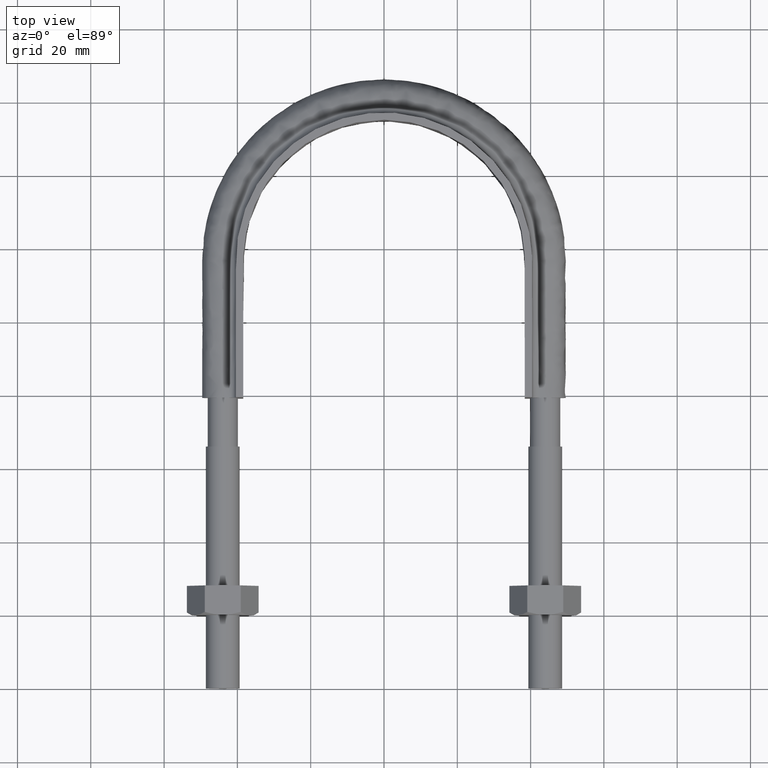
[diagram: clean part render]
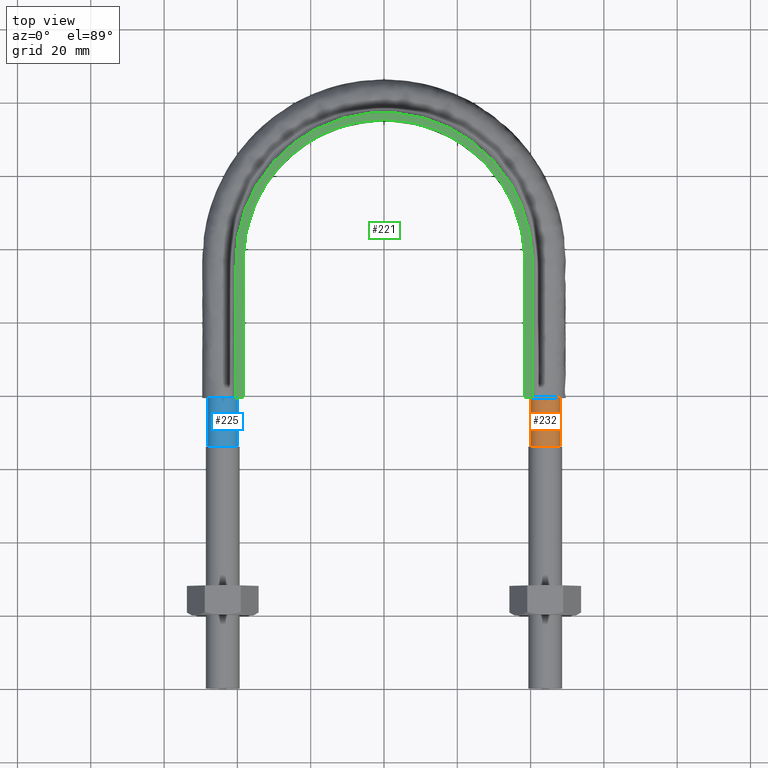
[diagram: same view with three faces highlighted in distinct colors, each labeled with its STEP entity id]
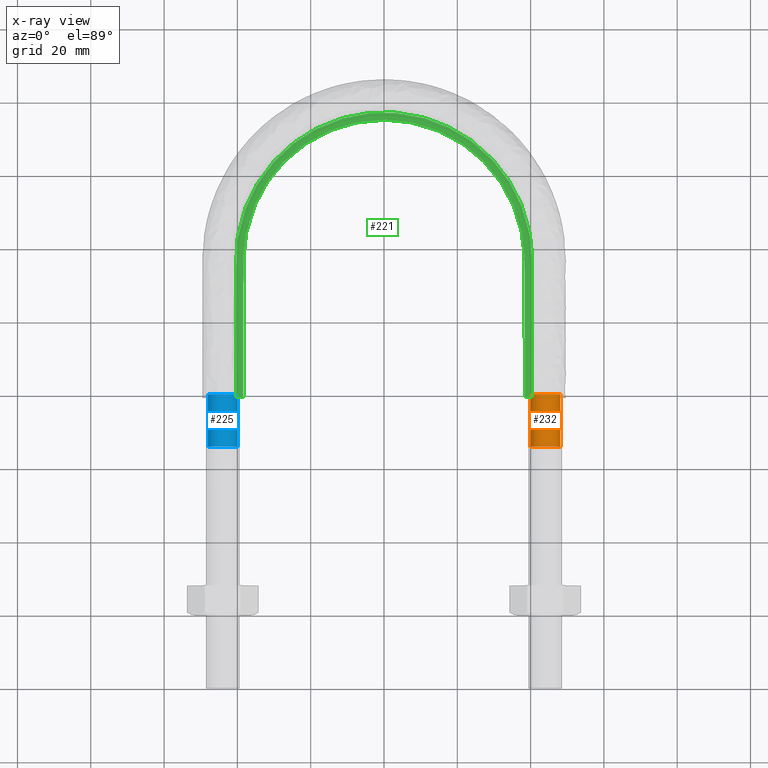
[diagram: x-ray of the same camera — body ghosted, the three highlighted faces saturated]
A machine part, top view with three faces highlighted in distinct colors.
The next image is the same camera in x-ray (body ghosted, the three faces saturated) — at least one of them is partly hidden behind the body in this view.
Their STEP definitions:

[orange] entity #232 — the highlighted cylindrical surface (bore or boss wall) has radius 4.1 mm, axis along (-0, -1, -0).
#232 = ADVANCED_FACE( '', ( #324, #325 ), #326, .T. );
#324 = FACE_OUTER_BOUND( '', #1167, .T. );
#325 = FACE_OUTER_BOUND( '', #1168, .T. );
#326 = CYLINDRICAL_SURFACE( '', #1169, 4.10000000000000 );
#1167 = EDGE_LOOP( '', ( #1409 ) );
#1168 = EDGE_LOOP( '', ( #1410, #1411, #1412, #1413, #1414, #1415, #1416 ) );
#1169 = AXIS2_PLACEMENT_3D( '', #1417, #1418, #1419 );
#1409 = ORIENTED_EDGE( '', *, *, #1862, .T. );
#1410 = ORIENTED_EDGE( '', *, *, #1877, .T. );
#1411 = ORIENTED_EDGE( '', *, *, #1859, .T. );
#1412 = ORIENTED_EDGE( '', *, *, #1878, .T. );
#1413 = ORIENTED_EDGE( '', *, *, #1879, .T. );
#1414 = ORIENTED_EDGE( '', *, *, #1880, .T. );
#1415 = ORIENTED_EDGE( '', *, *, #1876, .T. );
#1416 = ORIENTED_EDGE( '', *, *, #1881, .T. );
#1417 = CARTESIAN_POINT( '', ( 44.0000000000000, 80.2700000000000, 2.31450600872429E-015 ) );
#1418 = DIRECTION( '', ( -2.44921270764475E-016, -1.00000000000000, -6.12303176911189E-017 ) );
#1419 = DIRECTION( '', ( 1.00000000000000, -2.44921270764475E-016, -7.49830360911069E-033 ) );
#1859 = EDGE_CURVE( '', #2025, #2026, #2027, .T. );
#1862 = EDGE_CURVE( '', #2031, #2031, #2032, .T. );
#1876 = EDGE_CURVE( '', #2039, #2037, #2051, .T. );
#1877 = EDGE_CURVE( '', #2035, #2025, #2052, .T. );
#1878 = EDGE_CURVE( '', #2026, #2033, #2053, .T. );
#1879 = EDGE_CURVE( '', #2033, #2041, #2054, .T. );
#1880 = EDGE_CURVE( '', #2041, #2039, #2055, .T. );
#1881 = EDGE_CURVE( '', #2037, #2035, #2056, .T. );
#2025 = VERTEX_POINT( '', #2470 );
#2026 = VERTEX_POINT( '', #2471 );
#2027 = CIRCLE( '', #2472, 4.10000000000000 );
#2031 = VERTEX_POINT( '', #2479 );
#2032 = CIRCLE( '', #2480, 4.10000000000000 );
#2033 = VERTEX_POINT( '', #2481 );
#2035 = VERTEX_POINT( '', #2486 );
#2037 = VERTEX_POINT( '', #2491 );
#2039 = VERTEX_POINT( '', #2496 );
#2041 = VERTEX_POINT( '', #2501 );
#2051 = CIRCLE( '', #2538, 4.10000000000000 );
#2052 = CIRCLE( '', #2539, 4.10000000000000 );
#2053 = CIRCLE( '', #2540, 4.10000000000000 );
#2054 = CIRCLE( '', #2541, 4.10000000000000 );
#2055 = CIRCLE( '', #2542, 4.10000000000000 );
#2056 = CIRCLE( '', #2543, 4.10000000000000 );
#2470 = CARTESIAN_POINT( '', ( 44.9123358292208, 80.2700000000000, 3.99720443994549 ) );
#2471 = CARTESIAN_POINT( '', ( 41.4436918123789, 80.2700000000000, 3.20550907811870 ) );
#2472 = AXIS2_PLACEMENT_3D( '', #2908, #2909, #2910 );
#2479 = CARTESIAN_POINT( '', ( 48.1000000000000, 66.0000000000000, 1.44074937527203E-015 ) );
#2480 = AXIS2_PLACEMENT_3D( '', #2914, #2915, #2916 );
#2481 = CARTESIAN_POINT( '', ( 39.9000000000000, 80.2700000000000, -3.30788549888553E-014 ) );
#2486 = CARTESIAN_POINT( '', ( 47.6939723583999, 80.2700000000000, 1.77892333038204 ) );
#2491 = CARTESIAN_POINT( '', ( 47.6939723583999, 80.2700000000000, -1.77892333038203 ) );
#2496 = CARTESIAN_POINT( '', ( 44.9123358292214, 80.2700000000000, -3.99720443994536 ) );
#2501 = CARTESIAN_POINT( '', ( 41.4436918123816, 80.2700000000000, -3.20550907812083 ) );
#2538 = AXIS2_PLACEMENT_3D( '', #2917, #2918, #2919 );
#2539 = AXIS2_PLACEMENT_3D( '', #2920, #2921, #2922 );
#2540 = AXIS2_PLACEMENT_3D( '', #2923, #2924, #2925 );
#2541 = AXIS2_PLACEMENT_3D( '', #2926, #2927, #2928 );
#2542 = AXIS2_PLACEMENT_3D( '', #2929, #2930, #2931 );
#2543 = AXIS2_PLACEMENT_3D( '', #2932, #2933, #2934 );
#2908 = CARTESIAN_POINT( '', ( 44.0000000000000, 80.2700000000000, 2.31450600872429E-015 ) );
#2909 = DIRECTION( '', ( -2.44921270764475E-016, -1.00000000000000, -6.12303176911189E-017 ) );
#2910 = DIRECTION( '', ( 1.00000000000000, -2.44921270764475E-016, -7.49830360911068E-033 ) );
#2914 = CARTESIAN_POINT( '', ( 44.0000000000000, 66.0000000000000, 1.44074937527203E-015 ) );
#2915 = DIRECTION( '', ( 2.44921270764475E-016, 1.00000000000000, 6.12303176911189E-017 ) );
#2916 = DIRECTION( '', ( 1.00000000000000, -2.44921270764475E-016, 0.000000000000000 ) );
#2917 = CARTESIAN_POINT( '', ( 44.0000000000000, 80.2700000000000, 2.31450600872429E-015 ) );
#2918 = DIRECTION( '', ( -2.44921270764475E-016, -1.00000000000000, -6.12303176911189E-017 ) );
#2919 = DIRECTION( '', ( 1.00000000000000, -2.44921270764475E-016, -7.49830360911068E-033 ) );
#2920 = CARTESIAN_POINT( '', ( 44.0000000000000, 80.2700000000000, 2.31450600872429E-015 ) );
#2921 = DIRECTION( '', ( -2.44921270764475E-016, -1.00000000000000, -6.12303176911189E-017 ) );
#2922 = DIRECTION( '', ( 1.00000000000000, -2.44921270764475E-016, -7.49830360911068E-033 ) );
#2923 = CARTESIAN_POINT( '', ( 44.0000000000000, 80.2700000000000, 2.31450600872429E-015 ) );
#2924 = DIRECTION( '', ( -2.44921270764475E-016, -1.00000000000000, -6.12303176911189E-017 ) );
#2925 = DIRECTION( '', ( 1.00000000000000, -2.44921270764475E-016, -7.49830360911068E-033 ) );
#2926 = CARTESIAN_POINT( '', ( 44.0000000000000, 80.2700000000000, 2.31450600872429E-015 ) );
#2927 = DIRECTION( '', ( -2.44921270764475E-016, -1.00000000000000, -6.12303176911189E-017 ) );
#2928 = DIRECTION( '', ( 1.00000000000000, -2.44921270764475E-016, -7.49830360911068E-033 ) );
#2929 = CARTESIAN_POINT( '', ( 44.0000000000000, 80.2700000000000, 2.31450600872429E-015 ) );
#2930 = DIRECTION( '', ( -2.44921270764475E-016, -1.00000000000000, -6.12303176911189E-017 ) );
#2931 = DIRECTION( '', ( 1.00000000000000, -2.44921270764475E-016, -7.49830360911068E-033 ) );
#2932 = CARTESIAN_POINT( '', ( 44.0000000000000, 80.2700000000000, 2.31450600872429E-015 ) );
#2933 = DIRECTION( '', ( -2.44921270764475E-016, -1.00000000000000, -6.12303176911189E-017 ) );
#2934 = DIRECTION( '', ( 1.00000000000000, -2.44921270764475E-016, -7.49830360911068E-033 ) );

[blue] entity #225 — the highlighted cylindrical surface (bore or boss wall) has radius 4.1 mm, axis along (-0, -1, -0).
#225 = ADVANCED_FACE( '', ( #307, #308 ), #309, .T. );
#307 = FACE_OUTER_BOUND( '', #1001, .T. );
#308 = FACE_OUTER_BOUND( '', #1002, .T. );
#309 = CYLINDRICAL_SURFACE( '', #1003, 4.10000000000000 );
#1001 = EDGE_LOOP( '', ( #1359 ) );
#1002 = EDGE_LOOP( '', ( #1360, #1361, #1362, #1363, #1364, #1365, #1366 ) );
#1003 = AXIS2_PLACEMENT_3D( '', #1367, #1368, #1369 );
#1359 = ORIENTED_EDGE( '', *, *, #1851, .T. );
#1360 = ORIENTED_EDGE( '', *, *, #1852, .T. );
#1361 = ORIENTED_EDGE( '', *, *, #1853, .T. );
#1362 = ORIENTED_EDGE( '', *, *, #1854, .T. );
#1363 = ORIENTED_EDGE( '', *, *, #1855, .T. );
#1364 = ORIENTED_EDGE( '', *, *, #1856, .T. );
#1365 = ORIENTED_EDGE( '', *, *, #1857, .T. );
#1366 = ORIENTED_EDGE( '', *, *, #1858, .T. );
#1367 = CARTESIAN_POINT( '', ( -44.0000000000000, 80.2700000000000, 2.34512116756985E-015 ) );
#1368 = DIRECTION( '', ( -2.44921270764475E-016, -1.00000000000000, -6.12303176911189E-017 ) );
#1369 = DIRECTION( '', ( 1.00000000000000, -2.44921270764475E-016, -7.49830360911069E-033 ) );
#1851 = EDGE_CURVE( '', #2009, #2009, #2010, .T. );
#1852 = EDGE_CURVE( '', #2011, #2012, #2013, .T. );
#1853 = EDGE_CURVE( '', #2012, #2014, #2015, .T. );
#1854 = EDGE_CURVE( '', #2014, #2016, #2017, .T. );
#1855 = EDGE_CURVE( '', #2016, #2018, #2019, .T. );
#1856 = EDGE_CURVE( '', #2018, #2020, #2021, .T. );
#1857 = EDGE_CURVE( '', #2020, #2022, #2023, .T. );
#1858 = EDGE_CURVE( '', #2022, #2011, #2024, .T. );
#2009 = VERTEX_POINT( '', #2454 );
#2010 = CIRCLE( '', #2455, 4.10000000000000 );
#2011 = VERTEX_POINT( '', #2456 );
#2012 = VERTEX_POINT( '', #2457 );
#2013 = CIRCLE( '', #2458, 4.10000000000000 );
#2014 = VERTEX_POINT( '', #2459 );
#2015 = CIRCLE( '', #2460, 4.10000000000000 );
#2016 = VERTEX_POINT( '', #2461 );
#2017 = CIRCLE( '', #2462, 4.10000000000000 );
#2018 = VERTEX_POINT( '', #2463 );
#2019 = CIRCLE( '', #2464, 4.10000000000000 );
#2020 = VERTEX_POINT( '', #2465 );
#2021 = CIRCLE( '', #2466, 4.10000000000000 );
#2022 = VERTEX_POINT( '', #2467 );
#2023 = CIRCLE( '', #2468, 4.10000000000000 );
#2024 = CIRCLE( '', #2469, 4.10000000000000 );
#2454 = CARTESIAN_POINT( '', ( -39.9000000000000, 66.0000000000000, 1.47136453411759E-015 ) );
#2455 = AXIS2_PLACEMENT_3D( '', #2884, #2885, #2886 );
#2456 = CARTESIAN_POINT( '', ( -39.9000000000000, 80.2700000000000, 5.26458725159965E-014 ) );
#2457 = CARTESIAN_POINT( '', ( -41.4436918124017, 80.2700000000000, 3.20550907813692 ) );
#2458 = AXIS2_PLACEMENT_3D( '', #2887, #2888, #2889 );
#2459 = CARTESIAN_POINT( '', ( -44.9123358292510, 80.2700000000000, 3.99720443993860 ) );
#2460 = AXIS2_PLACEMENT_3D( '', #2890, #2891, #2892 );
#2461 = CARTESIAN_POINT( '', ( -47.6939723583999, 80.2700000000000, 1.77892333038206 ) );
#2462 = AXIS2_PLACEMENT_3D( '', #2893, #2894, #2895 );
#2463 = CARTESIAN_POINT( '', ( -47.6939723583999, 80.2700000000000, -1.77892333038199 ) );
#2464 = AXIS2_PLACEMENT_3D( '', #2896, #2897, #2898 );
#2465 = CARTESIAN_POINT( '', ( -44.9123358292208, 80.2700000000000, -3.99720443994549 ) );
#2466 = AXIS2_PLACEMENT_3D( '', #2899, #2900, #2901 );
#2467 = CARTESIAN_POINT( '', ( -41.4436918123794, 80.2700000000000, -3.20550907811908 ) );
#2468 = AXIS2_PLACEMENT_3D( '', #2902, #2903, #2904 );
#2469 = AXIS2_PLACEMENT_3D( '', #2905, #2906, #2907 );
#2884 = CARTESIAN_POINT( '', ( -44.0000000000000, 66.0000000000000, 1.47136453411759E-015 ) );
#2885 = DIRECTION( '', ( 2.44921270764476E-016, 1.00000000000000, 6.12303176911189E-017 ) );
#2886 = DIRECTION( '', ( 1.00000000000000, -2.44921270764476E-016, 0.000000000000000 ) );
#2887 = CARTESIAN_POINT( '', ( -44.0000000000000, 80.2700000000000, 2.34512116756985E-015 ) );
#2888 = DIRECTION( '', ( -2.44921270764475E-016, -1.00000000000000, -6.12303176911189E-017 ) );
#2889 = DIRECTION( '', ( 1.00000000000000, -2.44921270764475E-016, -1.04341724267742E-032 ) );
#2890 = CARTESIAN_POINT( '', ( -44.0000000000000, 80.2700000000000, 2.34512116756985E-015 ) );
#2891 = DIRECTION( '', ( -2.44921270764475E-016, -1.00000000000000, -6.12303176911189E-017 ) );
#2892 = DIRECTION( '', ( 1.00000000000000, -2.44921270764475E-016, -1.04341724267742E-032 ) );
#2893 = CARTESIAN_POINT( '', ( -44.0000000000000, 80.2700000000000, 2.34512116756985E-015 ) );
#2894 = DIRECTION( '', ( -2.44921270764475E-016, -1.00000000000000, -6.12303176911189E-017 ) );
#2895 = DIRECTION( '', ( 1.00000000000000, -2.44921270764475E-016, -1.04341724267742E-032 ) );
#2896 = CARTESIAN_POINT( '', ( -44.0000000000000, 80.2700000000000, 2.34512116756985E-015 ) );
#2897 = DIRECTION( '', ( -2.44921270764475E-016, -1.00000000000000, -6.12303176911189E-017 ) );
#2898 = DIRECTION( '', ( 1.00000000000000, -2.44921270764475E-016, -1.04341724267742E-032 ) );
#2899 = CARTESIAN_POINT( '', ( -44.0000000000000, 80.2700000000000, 2.34512116756985E-015 ) );
#2900 = DIRECTION( '', ( -2.44921270764475E-016, -1.00000000000000, -6.12303176911189E-017 ) );
#2901 = DIRECTION( '', ( 1.00000000000000, -2.44921270764475E-016, -1.04341724267742E-032 ) );
#2902 = CARTESIAN_POINT( '', ( -44.0000000000000, 80.2700000000000, 2.34512116756985E-015 ) );
#2903 = DIRECTION( '', ( -2.44921270764475E-016, -1.00000000000000, -6.12303176911189E-017 ) );
#2904 = DIRECTION( '', ( 1.00000000000000, -2.44921270764475E-016, -1.04341724267742E-032 ) );
#2905 = CARTESIAN_POINT( '', ( -44.0000000000000, 80.2700000000000, 2.34512116756985E-015 ) );
#2906 = DIRECTION( '', ( -2.44921270764475E-016, -1.00000000000000, -6.12303176911189E-017 ) );
#2907 = DIRECTION( '', ( 1.00000000000000, -2.44921270764475E-016, -1.04341724267742E-032 ) );

[green] entity #221 — the highlighted planar face has unit normal (0, 0, 1).
#221 = ADVANCED_FACE( '', ( #299 ), #300, .T. );
#299 = FACE_OUTER_BOUND( '', #467, .T. );
#300 = PLANE( '', #468 );
#467 = EDGE_LOOP( '', ( #1334, #1335, #1336, #1337 ) );
#468 = AXIS2_PLACEMENT_3D( '', #1338, #1339, #1340 );
#1334 = ORIENTED_EDGE( '', *, *, #1840, .T. );
#1335 = ORIENTED_EDGE( '', *, *, #1845, .F. );
#1336 = ORIENTED_EDGE( '', *, *, #1846, .T. );
#1337 = ORIENTED_EDGE( '', *, *, #1847, .F. );
#1338 = CARTESIAN_POINT( '', ( 55.0000000000000, 179.300000000000, 12.5000000000000 ) );
#1339 = DIRECTION( '', ( 0.000000000000000, 0.000000000000000, 1.00000000000000 ) );
#1340 = DIRECTION( '', ( 1.00000000000000, 0.000000000000000, 0.000000000000000 ) );
#1840 = EDGE_CURVE( '', #1992, #1989, #1993, .F. );
#1845 = EDGE_CURVE( '', #1999, #1989, #2001, .T. );
#1846 = EDGE_CURVE( '', #1999, #2002, #2003, .F. );
#1847 = EDGE_CURVE( '', #1992, #2002, #2004, .T. );
#1989 = VERTEX_POINT( '', #2235 );
#1992 = VERTEX_POINT( '', #2239 );
#1993 = LINE( '', #2240, #2241 );
#1999 = VERTEX_POINT( '', #2294 );
#2001 = B_SPLINE_CURVE_WITH_KNOTS( '', 3, ( #2297, #2298, #2299, #2300, #2301, #2302, #2303, #2304, #2305, #2306, #2307, #2308, #2309, #2310, #2311, #2312, #2313, #2314, #2315, #2316, #2317, #2318, #2319, #2320, #2321, #2322, #2323, #2324, #2325, #2326, #2327, #2328, #2329, #2330, #2331, #2332, #2333, #2334, #2335, #2336, #2337, #2338, #2339, #2340, #2341, #2342, #2343, #2344, #2345, #2346, #2347, #2348, #2349, #2350, #2351, #2352, #2353, #2354, #2355, #2356, #2357, #2358, #2359, #2360, #2361, #2362, #2363, #2364, #2365, #2366, #2367, #2368, #2369, #2370, #2371, #2372, #2373, #2374, #2375, #2376, #2377, #2378, #2379, #2380, #2381, #2382 ), .UNSPECIFIED., .F., .F., ( 4, 1, 2, 2, 2, 2, 2, 2, 2, 2, 2, 2, 2, 2, 2, 2, 2, 2, 2, 2, 2, 2, 2, 2, 2, 2, 2, 2, 2, 2, 2, 2, 2, 2, 2, 2, 2, 2, 2, 2, 2, 2, 1, 4 ), ( 0.000000000000000, 0.0243379018108088, 0.0365068527162132, 0.0380279715793887, 0.0395490904425643, 0.0425913281689154, 0.0456335658952665, 0.0486758036216176, 0.0547602790743198, 0.0578025168006710, 0.0593236356638465, 0.0608447545270221, 0.0669292299797247, 0.0699714677060759, 0.0714925865692515, 0.0730137054324272, 0.0790981808851297, 0.0851826563378323, 0.0867037752010079, 0.0882248940641836, 0.0912671317905349, 0.0973516072432375, 0.0988727261064131, 0.100393844969589, 0.103436082695940, 0.109520558148643, 0.112562795874994, 0.115605033601345, 0.121689509054048, 0.123210627917223, 0.124731746780399, 0.127773984506750, 0.133858459959453, 0.136900697685804, 0.139942935412156, 0.146027410864858, 0.149069648591210, 0.150590767454385, 0.152111886317561, 0.155154124043912, 0.156675242907088, 0.158196361770264, 0.170365312675669, 0.194703214486479 ), .UNSPECIFIED. );
#2002 = VERTEX_POINT( '', #2383 );
#2003 = LINE( '', #2384, #2385 );
#2004 = B_SPLINE_CURVE_WITH_KNOTS( '', 3, ( #2386, #2387, #2388, #2389, #2390, #2391, #2392, #2393, #2394, #2395, #2396, #2397, #2398, #2399, #2400, #2401, #2402 ), .UNSPECIFIED., .F., .F., ( 4, 3, 1, 1, 1, 1, 1, 1, 1, 3, 4 ), ( 0.0698254364089766, 1.00000000000000, 1.50000000000000, 2.00000000000000, 3.00000000000000, 4.00000000000000, 5.00000000000000, 6.00000000000000, 6.50000000000000, 7.00000000000000, 7.93017456359102 ), .UNSPECIFIED. );
#2235 = CARTESIAN_POINT( '', ( -38.4000000000000, 79.3000000000000, 12.5000000000000 ) );
#2239 = CARTESIAN_POINT( '', ( -40.4000000000000, 79.3000000000000, 12.5000000000000 ) );
#2240 = CARTESIAN_POINT( '', ( 55.0000000000000, 79.3000000000000, 12.5000000000000 ) );
#2241 = VECTOR( '', #2879, 1000.00000000000 );
#2294 = CARTESIAN_POINT( '', ( 38.4000000000000, 79.3000000000000, 12.5000000000000 ) );
#2297 = CARTESIAN_POINT( '', ( 38.4000000000000, 79.3000000000000, 12.5000000000000 ) );
#2298 = CARTESIAN_POINT( '', ( 38.4000000000000, 87.4126339369366, 12.5000000000000 ) );
#2299 = CARTESIAN_POINT( '', ( 38.4000000000000, 99.5815848423416, 12.5000000000000 ) );
#2300 = CARTESIAN_POINT( '', ( 38.4000000000000, 111.750535747747, 12.5000000000000 ) );
#2301 = CARTESIAN_POINT( '', ( 38.4000000000000, 116.313892337273, 12.5000000000000 ) );
#2302 = CARTESIAN_POINT( '', ( 38.4027743076037, 116.821119409890, 12.5000000000000 ) );
#2303 = CARTESIAN_POINT( '', ( 38.3830167791574, 117.833863695679, 12.5000000000000 ) );
#2304 = CARTESIAN_POINT( '', ( 38.3628782069929, 118.339542614440, 12.5000000000000 ) );
#2305 = CARTESIAN_POINT( '', ( 38.2722040230530, 119.854534897765, 12.5000000000000 ) );
#2306 = CARTESIAN_POINT( '', ( 38.1714849409614, 120.861808856702, 12.5000000000000 ) );
#2307 = CARTESIAN_POINT( '', ( 37.8904277266656, 122.870977156620, 12.5000000000000 ) );
#2308 = CARTESIAN_POINT( '', ( 37.7100929165159, 123.872871722061, 12.5000000000000 ) );
#2309 = CARTESIAN_POINT( '', ( 37.2682777085645, 125.871178091473, 12.5000000000000 ) );
#2310 = CARTESIAN_POINT( '', ( 37.0058649207665, 126.869209598004, 12.5000000000000 ) );
#2311 = CARTESIAN_POINT( '', ( 36.1099085355125, 129.800428328994, 12.5000000000000 ) );
#2312 = CARTESIAN_POINT( '', ( 35.3652812283339, 131.689277860510, 12.5000000000000 ) );
#2313 = CARTESIAN_POINT( '', ( 34.0270721353677, 134.424482046523, 12.5000000000000 ) );
#2314 = CARTESIAN_POINT( '', ( 33.5438803306413, 135.319763573667, 12.5000000000000 ) );
#2315 = CARTESIAN_POINT( '', ( 32.7614856080270, 136.637153374160, 12.5000000000000 ) );
#2316 = CARTESIAN_POINT( '', ( 32.4911122498971, 137.072039439345, 12.5000000000000 ) );
#2317 = CARTESIAN_POINT( '', ( 31.9310694523165, 137.933259191099, 12.5000000000000 ) );
#2318 = CARTESIAN_POINT( '', ( 31.6416548483075, 138.359099832881, 12.5000000000000 ) );
#2319 = CARTESIAN_POINT( '', ( 30.1598500561494, 140.447972709778, 12.5000000000000 ) );
#2320 = CARTESIAN_POINT( '', ( 28.8544690281687, 142.006253780205, 12.5000000000000 ) );
#2321 = CARTESIAN_POINT( '', ( 26.7242269234557, 144.181725572989, 12.5000000000000 ) );
#2322 = CARTESIAN_POINT( '', ( 25.9852601970118, 144.879711605143, 12.5000000000000 ) );
#2323 = CARTESIAN_POINT( '', ( 24.8327554866622, 145.885251295440, 12.5000000000000 ) );
#2324 = CARTESIAN_POINT( '', ( 24.4412331318478, 146.213513644747, 12.5000000000000 ) );
#2325 = CARTESIAN_POINT( '', ( 23.6432116170532, 146.855950622699, 12.5000000000000 ) );
#2326 = CARTESIAN_POINT( '', ( 23.2357844532915, 147.170799679600, 12.5000000000000 ) );
#2327 = CARTESIAN_POINT( '', ( 21.1728995967702, 148.699717522120, 12.5000000000000 ) );
#2328 = CARTESIAN_POINT( '', ( 19.4461214786926, 149.775116348712, 12.5000000000000 ) );
#2329 = CARTESIAN_POINT( '', ( 15.8424012951629, 151.635807157406, 12.5000000000000 ) );
#2330 = CARTESIAN_POINT( '', ( 13.9663663217126, 152.422851581443, 12.5000000000000 ) );
#2331 = CARTESIAN_POINT( '', ( 11.5271708169515, 153.224762065559, 12.5000000000000 ) );
#2332 = CARTESIAN_POINT( '', ( 11.0351210878861, 153.375746188077, 12.5000000000000 ) );
#2333 = CARTESIAN_POINT( '', ( 10.0502423640910, 153.656786422983, 12.5000000000000 ) );
#2334 = CARTESIAN_POINT( '', ( 9.55637016529651, 153.787194835959, 12.5000000000000 ) );
#2335 = CARTESIAN_POINT( '', ( 8.07051418322889, 154.148502213832, 12.5000000000000 ) );
#2336 = CARTESIAN_POINT( '', ( 7.07429985999602, 154.349545743025, 12.5000000000000 ) );
#2337 = CARTESIAN_POINT( '', ( 4.06886690428308, 154.834187354575, 12.5000000000000 ) );
#2338 = CARTESIAN_POINT( '', ( 2.04300780873499, 155.000351662540, 12.5000000000000 ) );
#2339 = CARTESIAN_POINT( '', ( -0.518810472445948, 154.999911391897, 12.5000000000000 ) );
#2340 = CARTESIAN_POINT( '', ( -1.03384934041106, 154.989267949139, 12.5000000000000 ) );
#2341 = CARTESIAN_POINT( '', ( -2.05999227101008, 154.947123645522, 12.5000000000000 ) );
#2342 = CARTESIAN_POINT( '', ( -2.57100025916348, 154.915690794062, 12.5000000000000 ) );
#2343 = CARTESIAN_POINT( '', ( -4.09798525337103, 154.791070625937, 12.5000000000000 ) );
#2344 = CARTESIAN_POINT( '', ( -5.10793619044547, 154.667626472700, 12.5000000000000 ) );
#2345 = CARTESIAN_POINT( '', ( -8.11438462156117, 154.179780837089, 12.5000000000000 ) );
#2346 = CARTESIAN_POINT( '', ( -10.0876738344827, 153.698850790019, 12.5000000000000 ) );
#2347 = CARTESIAN_POINT( '', ( -13.0003199951629, 152.740024822744, 12.5000000000000 ) );
#2348 = CARTESIAN_POINT( '', ( -13.9672170977485, 152.378727202231, 12.5000000000000 ) );
#2349 = CARTESIAN_POINT( '', ( -15.8546719802244, 151.585984907772, 12.5000000000000 ) );
#2350 = CARTESIAN_POINT( '', ( -16.7774313079126, 151.154197465975, 12.5000000000000 ) );
#2351 = CARTESIAN_POINT( '', ( -19.4833402127080, 149.753490344414, 12.5000000000000 ) );
#2352 = CARTESIAN_POINT( '', ( -21.2036319794208, 148.678400373100, 12.5000000000000 ) );
#2353 = CARTESIAN_POINT( '', ( -23.2504143165321, 147.159581599005, 12.5000000000000 ) );
#2354 = CARTESIAN_POINT( '', ( -23.6545765017688, 146.847044416500, 12.5000000000000 ) );
#2355 = CARTESIAN_POINT( '', ( -24.4524162332017, 146.204260920726, 12.5000000000000 ) );
#2356 = CARTESIAN_POINT( '', ( -24.8469576925088, 145.873240647292, 12.5000000000000 ) );
#2357 = CARTESIAN_POINT( '', ( -26.0068899055367, 144.860053871450, 12.5000000000000 ) );
#2358 = CARTESIAN_POINT( '', ( -26.7486892538444, 144.158088969384, 12.5000000000000 ) );
#2359 = CARTESIAN_POINT( '', ( -28.8823748109421, 141.974991317251, 12.5000000000000 ) );
#2360 = CARTESIAN_POINT( '', ( -30.1833131714199, 140.417299289572, 12.5000000000000 ) );
#2361 = CARTESIAN_POINT( '', ( -31.9490860628639, 137.924495268019, 12.5000000000000 ) );
#2362 = CARTESIAN_POINT( '', ( -32.5065492449487, 137.067357440084, 12.5000000000000 ) );
#2363 = CARTESIAN_POINT( '', ( -33.5561706257855, 135.298108495221, 12.5000000000000 ) );
#2364 = CARTESIAN_POINT( '', ( -34.0419906193418, 134.396127879280, 12.5000000000000 ) );
#2365 = CARTESIAN_POINT( '', ( -35.3824842141312, 131.649725427965, 12.5000000000000 ) );
#2366 = CARTESIAN_POINT( '', ( -36.1236281599900, 129.761104672605, 12.5000000000000 ) );
#2367 = CARTESIAN_POINT( '', ( -37.0127103209049, 126.843968621002, 12.5000000000000 ) );
#2368 = CARTESIAN_POINT( '', ( -37.2717329928219, 125.857467876968, 12.5000000000000 ) );
#2369 = CARTESIAN_POINT( '', ( -37.6030425852180, 124.356073245167, 12.5000000000000 ) );
#2370 = CARTESIAN_POINT( '', ( -37.7041051856696, 123.850877289074, 12.5000000000000 ) );
#2371 = CARTESIAN_POINT( '', ( -37.8853786337735, 122.841026729265, 12.5000000000000 ) );
#2372 = CARTESIAN_POINT( '', ( -37.9657364586178, 122.335935616760, 12.5000000000000 ) );
#2373 = CARTESIAN_POINT( '', ( -38.1763323138402, 120.820170574568, 12.5000000000000 ) );
#2374 = CARTESIAN_POINT( '', ( -38.2761686057870, 119.809006164411, 12.5000000000000 ) );
#2375 = CARTESIAN_POINT( '', ( -38.3651025185759, 118.291278313189, 12.5000000000000 ) );
#2376 = CARTESIAN_POINT( '', ( -38.3845912942189, 117.785205181846, 12.5000000000000 ) );
#2377 = CARTESIAN_POINT( '', ( -38.4030301939459, 116.772727562863, 12.5000000000000 ) );
#2378 = CARTESIAN_POINT( '', ( -38.4000000000000, 116.266291126151, 12.5000000000000 ) );
#2379 = CARTESIAN_POINT( '', ( -38.4000000000000, 111.708803179092, 12.5000000000000 ) );
#2380 = CARTESIAN_POINT( '', ( -38.4000000000000, 99.5555019869321, 12.5000000000000 ) );
#2381 = CARTESIAN_POINT( '', ( -38.4000000000000, 87.4022007947728, 12.5000000000000 ) );
#2382 = CARTESIAN_POINT( '', ( -38.4000000000000, 79.3000000000000, 12.5000000000000 ) );
#2383 = CARTESIAN_POINT( '', ( 40.4000000000000, 79.3000000000000, 12.5000000000000 ) );
#2384 = CARTESIAN_POINT( '', ( 55.0000000000000, 79.3000000000000, 12.5000000000000 ) );
#2385 = VECTOR( '', #2882, 1000.00000000000 );
#2386 = CARTESIAN_POINT( '', ( -40.4000000000000, 79.3000000000000, 12.5000000000000 ) );
#2387 = CARTESIAN_POINT( '', ( -40.4000000000000, 91.7333333333333, 12.5000000000000 ) );
#2388 = CARTESIAN_POINT( '', ( -40.4000000000000, 104.166666666666, 12.5000000000000 ) );
#2389 = CARTESIAN_POINT( '', ( -40.4000000000000, 116.600000000000, 12.5000000000000 ) );
#2390 = CARTESIAN_POINT( '', ( -40.4000000000000, 120.116528833197, 12.5000000000000 ) );
#2391 = CARTESIAN_POINT( '', ( -39.4544182095027, 127.175179019489, 12.5000000000000 ) );
#2392 = CARTESIAN_POINT( '', ( -34.0439198137652, 140.322280291266, 12.5000000000000 ) );
#2393 = CARTESIAN_POINT( '', ( -21.1440253219688, 153.223582281160, 12.5000000000000 ) );
#2394 = CARTESIAN_POINT( '', ( 3.42027005574731E-014, 158.888208859420, 12.5000000000000 ) );
#2395 = CARTESIAN_POINT( '', ( 21.1440253219689, 153.223582281160, 12.5000000000000 ) );
#2396 = CARTESIAN_POINT( '', ( 34.0439198137653, 140.322280291266, 12.5000000000000 ) );
#2397 = CARTESIAN_POINT( '', ( 39.4544182095027, 127.175179019489, 12.5000000000000 ) );
#2398 = CARTESIAN_POINT( '', ( 40.4000000000000, 120.116528833197, 12.5000000000000 ) );
#2399 = CARTESIAN_POINT( '', ( 40.4000000000000, 116.600000000000, 12.5000000000000 ) );
#2400 = CARTESIAN_POINT( '', ( 40.4000000000000, 104.166666666666, 12.5000000000000 ) );
#2401 = CARTESIAN_POINT( '', ( 40.4000000000000, 91.7333333333333, 12.5000000000000 ) );
#2402 = CARTESIAN_POINT( '', ( 40.4000000000000, 79.3000000000000, 12.5000000000000 ) );
#2879 = DIRECTION( '', ( -1.00000000000000, 1.83649404852125E-048, 0.000000000000000 ) );
#2882 = DIRECTION( '', ( -1.00000000000000, 1.83649404852125E-048, 0.000000000000000 ) );